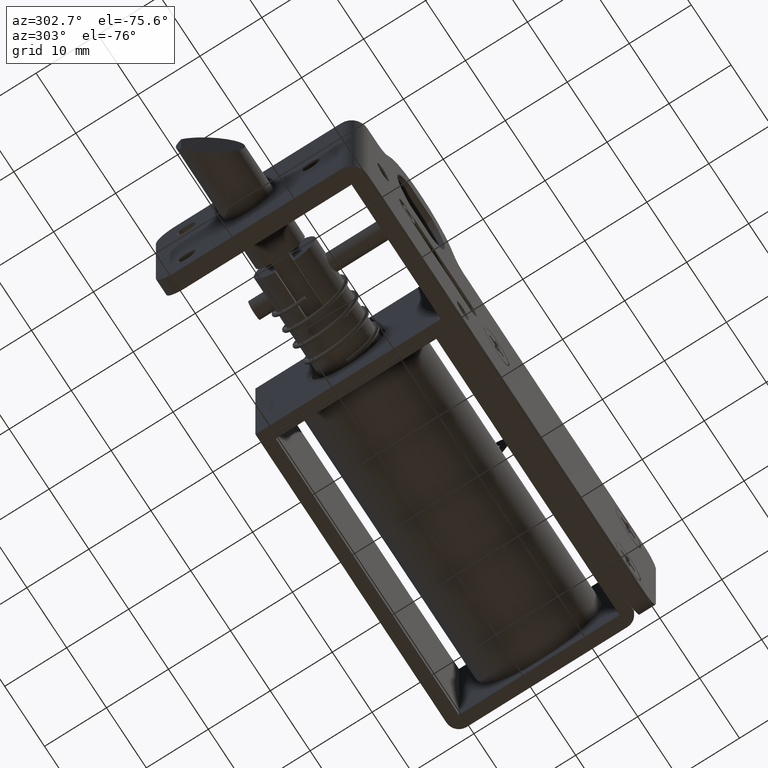
[diagram: clean part render]
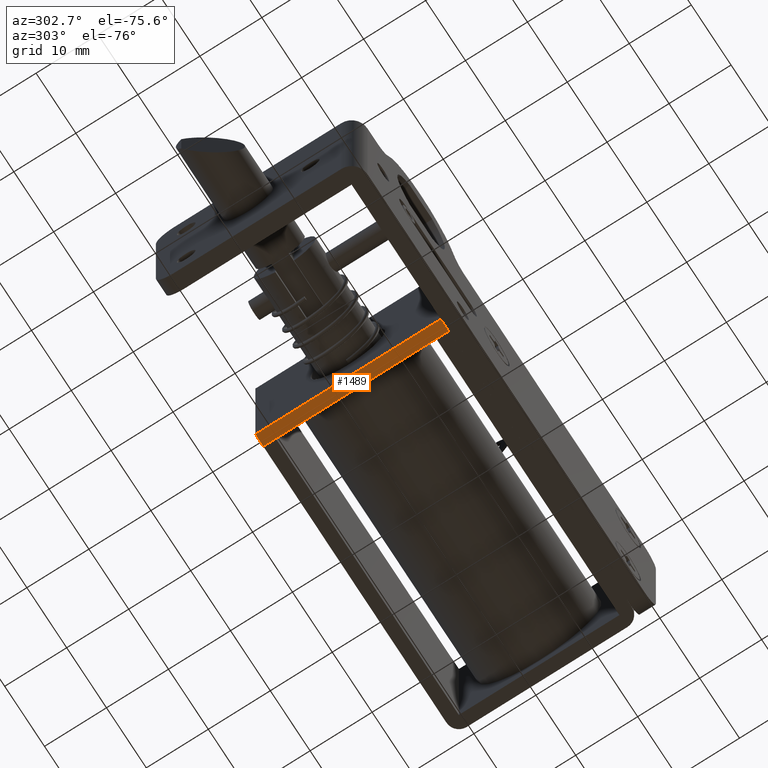
[diagram: same view with one face highlighted and labeled with its STEP entity id]
A machine part, auxiliary view. The second image highlights one B-rep face of the part: STEP entity #1489.
In plain terms, the highlighted planar face has unit normal (0, 0, -1).
Its self-contained STEP definition (entity closure, byte-faithful):
#234 = DIRECTION ( 'NONE',  ( -1.000000000000000000, 0.0000000000000000000, 0.0000000000000000000 ) ) ;
#248 = ORIENTED_EDGE ( 'NONE', *, *, #6006, .T. ) ;
#272 = LINE ( 'NONE', #6361, #6580 ) ;
#327 = VECTOR ( 'NONE', #3691, 1000.000000000000000 ) ;
#362 = CARTESIAN_POINT ( 'NONE',  ( 11.00000000000019900, 2.600000000000110200, -23.50000000000000000 ) ) ;
#686 = LINE ( 'NONE', #6314, #6945 ) ;
#692 = ORIENTED_EDGE ( 'NONE', *, *, #4369, .T. ) ;
#892 = DIRECTION ( 'NONE',  ( 0.0000000000000000000, 0.0000000000000000000, -1.000000000000000000 ) ) ;
#1056 = CARTESIAN_POINT ( 'NONE',  ( 11.00000000000019900, 32.50000000000000000, -23.50000000000000000 ) ) ;
#1221 = CARTESIAN_POINT ( 'NONE',  ( 0.0000000000000000000, 32.50000000000000000, -23.50000000000000000 ) ) ;
#1434 = DIRECTION ( 'NONE',  ( 1.000000000000000000, 0.0000000000000000000, 0.0000000000000000000 ) ) ;
#1489 = ADVANCED_FACE ( 'NONE', ( #4672 ), #5173, .T. ) ;
#1547 = VECTOR ( 'NONE', #7272, 1000.000000000000000 ) ;
#1975 = LINE ( 'NONE', #6121, #327 ) ;
#2945 = ORIENTED_EDGE ( 'NONE', *, *, #3847, .T. ) ;
#3010 = ORIENTED_EDGE ( 'NONE', *, *, #4422, .T. ) ;
#3389 = VERTEX_POINT ( 'NONE', #362 ) ;
#3691 = DIRECTION ( 'NONE',  ( 0.0000000000000000000, 1.000000000000000000, 0.0000000000000000000 ) ) ;
#3847 = EDGE_CURVE ( 'NONE', #5562, #5781, #6847, .T. ) ;
#4078 = CARTESIAN_POINT ( 'NONE',  ( 9.000000000000199000, 32.50000000000000000, -23.50000000000000000 ) ) ;
#4369 = EDGE_CURVE ( 'NONE', #3389, #4536, #686, .T. ) ;
#4422 = EDGE_CURVE ( 'NONE', #5781, #3389, #272, .T. ) ;
#4536 = VERTEX_POINT ( 'NONE', #6383 ) ;
#4672 = FACE_OUTER_BOUND ( 'NONE', #6599, .T. ) ;
#5093 = AXIS2_PLACEMENT_3D ( 'NONE', #7550, #892, #1434 ) ;
#5173 = PLANE ( 'NONE',  #5093 ) ;
#5562 = VERTEX_POINT ( 'NONE', #4078 ) ;
#5769 = DIRECTION ( 'NONE',  ( 1.160350151155061900E-016, -1.000000000000000000, 0.0000000000000000000 ) ) ;
#5781 = VERTEX_POINT ( 'NONE', #1056 ) ;
#6006 = EDGE_CURVE ( 'NONE', #4536, #5562, #1975, .T. ) ;
#6121 = CARTESIAN_POINT ( 'NONE',  ( 9.000000000000199000, 0.0000000000000000000, -23.50000000000000000 ) ) ;
#6314 = CARTESIAN_POINT ( 'NONE',  ( 0.0000000000000000000, 2.600000000000110200, -23.50000000000000000 ) ) ;
#6361 = CARTESIAN_POINT ( 'NONE',  ( 11.00000000000019900, 1.276385166270591900E-015, -23.50000000000000000 ) ) ;
#6383 = CARTESIAN_POINT ( 'NONE',  ( 9.000000000000199000, 2.600000000000110200, -23.50000000000000000 ) ) ;
#6580 = VECTOR ( 'NONE', #5769, 1000.000000000000000 ) ;
#6599 = EDGE_LOOP ( 'NONE', ( #3010, #692, #248, #2945 ) ) ;
#6847 = LINE ( 'NONE', #1221, #1547 ) ;
#6945 = VECTOR ( 'NONE', #234, 1000.000000000000000 ) ;
#7272 = DIRECTION ( 'NONE',  ( 1.000000000000000000, 0.0000000000000000000, 0.0000000000000000000 ) ) ;
#7550 = CARTESIAN_POINT ( 'NONE',  ( 0.0000000000000000000, 0.0000000000000000000, -23.50000000000000000 ) ) ;